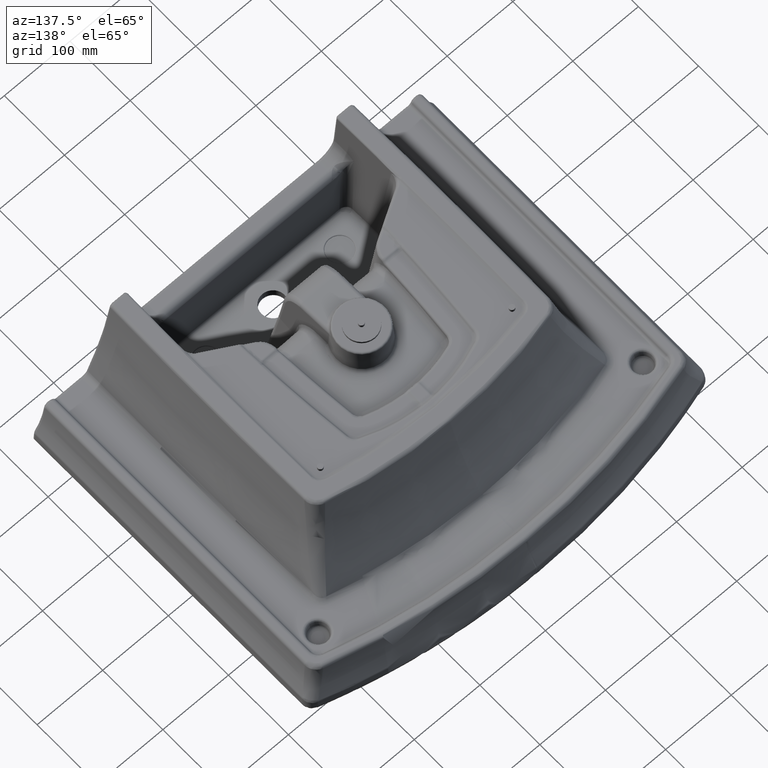
[diagram: clean part render]
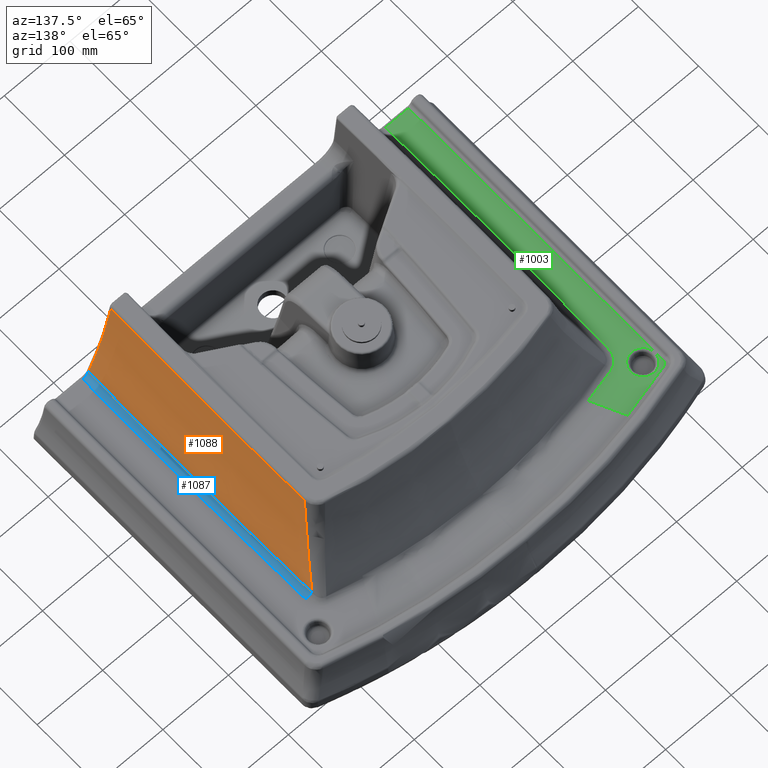
[diagram: same view with three faces highlighted in distinct colors, each labeled with its STEP entity id]
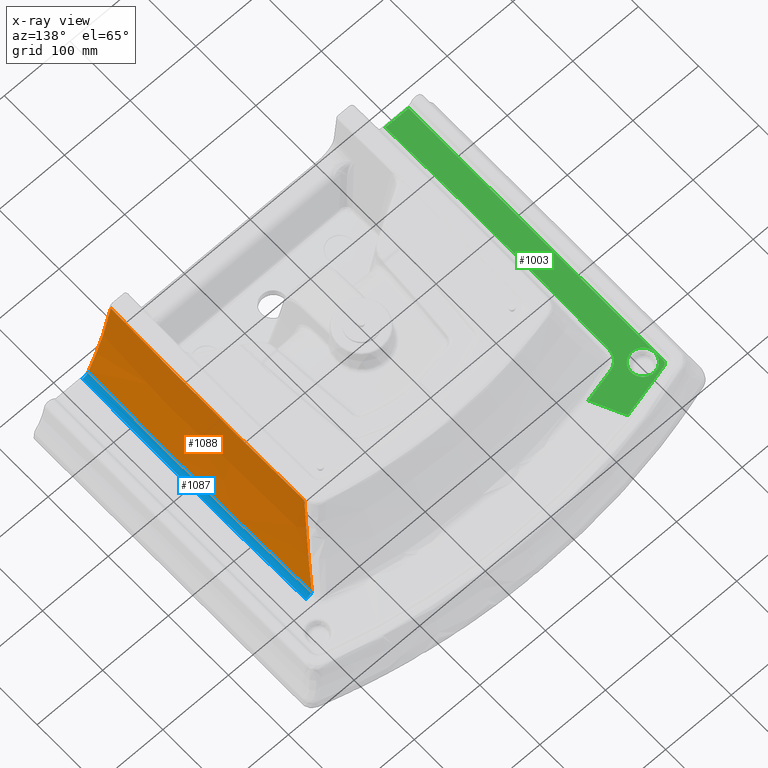
[diagram: x-ray of the same camera — body ghosted, the three highlighted faces saturated]
A machine part, auxiliary view with three faces highlighted in distinct colors.
The next image is the same camera in x-ray (body ghosted, the three faces saturated) — at least one of them is partly hidden behind the body in this view.
Their STEP definitions:

[orange] entity #1088 — the highlighted face is a SurfaceOfRevolution surface.
#117=SURFACE_OF_REVOLUTION('',#6991,#119);
#119=AXIS1_PLACEMENT('',#19977,#8203);
#694=CIRCLE('',#7535,10036.65655111);
#695=CIRCLE('',#7537,10000.74047797);
#1088=ADVANCED_FACE('',(#1616),#117,.T.);
#1616=FACE_OUTER_BOUND('',#2086,.T.);
#2086=EDGE_LOOP('',(#3698,#3699,#3700,#3701));
#3698=ORIENTED_EDGE('',*,*,#6130,.T.);
#3699=ORIENTED_EDGE('',*,*,#6086,.T.);
#3700=ORIENTED_EDGE('',*,*,#6131,.F.);
#3701=ORIENTED_EDGE('',*,*,#5995,.T.);
#5143=VERTEX_POINT('',#17750);
#5144=VERTEX_POINT('',#17776);
#5198=VERTEX_POINT('',#19139);
#5201=VERTEX_POINT('',#19236);
#5995=EDGE_CURVE('',#5143,#5144,#6904,.T.);
#6086=EDGE_CURVE('',#5198,#5201,#6959,.T.);
#6130=EDGE_CURVE('',#5144,#5198,#694,.T.);
#6131=EDGE_CURVE('',#5143,#5201,#695,.T.);
#6904=B_SPLINE_CURVE_WITH_KNOTS('',3,(#17777,#17778,#17779,#17780,#17781,
#17782),.UNSPECIFIED.,.F.,.F.,(4,2,4),(0.,0.5,1.),.UNSPECIFIED.);
#6959=B_SPLINE_CURVE_WITH_KNOTS('',3,(#19212,#19213,#19214,#19215,#19216,
#19217,#19218,#19219,#19220,#19221,#19222,#19223,#19224,#19225,#19226,#19227,
#19228,#19229,#19230,#19231,#19232,#19233,#19234,#19235),.UNSPECIFIED.,
 .F.,.F.,(4,2,2,2,2,2,2,2,1,2,2,1,4),(0.,0.250000000000001,0.500000000000001,
0.562500000000001,0.625000000000001,0.687500000000001,0.750000000000001,
0.781250000000001,0.812500000000001,0.875,0.90625,0.9375,1.),
 .UNSPECIFIED.);
#6991=B_SPLINE_CURVE_WITH_KNOTS('',3,(#19973,#19974,#19975,#19976),
 .UNSPECIFIED.,.F.,.F.,(4,4),(0.,1.),.UNSPECIFIED.);
#7535=AXIS2_PLACEMENT_3D('',#19970,#8197,#8198);
#7537=AXIS2_PLACEMENT_3D('',#19972,#8201,#8202);
#8197=DIRECTION('',(0.,-1.,-1.04083408558608E-017));
#8198=DIRECTION('',(0.999804175758331,0.,0.0197891418764106));
#8201=DIRECTION('',(0.,-1.,-1.04083408558608E-017));
#8202=DIRECTION('',(0.999890588074105,0.,0.0147922912633601));
#8203=DIRECTION('',(0.,1.,1.04083408558608E-017));
#17750=CARTESIAN_POINT('',(194.283927068453,-11.9690547502549,-210.470996751902));
#17776=CARTESIAN_POINT('',(230.239859203094,101.021897184885,-208.478414884215));
#17777=CARTESIAN_POINT('',(194.283926930841,-11.9690554861449,-210.470996764823));
#17778=CARTESIAN_POINT('',(197.913789855079,7.48616869946884,-210.127752279506));
#17779=CARTESIAN_POINT('',(202.87926327206,26.7287341318931,-209.788324992055));
#17780=CARTESIAN_POINT('',(215.01138852881,64.4677670243196,-209.122804687614));
#17781=CARTESIAN_POINT('',(222.168344034884,82.9512415600611,-208.79693989678));
#17782=CARTESIAN_POINT('',(230.239859816183,101.021898563365,-208.478414859893));
#19139=CARTESIAN_POINT('',(229.754352085261,101.021897184885,162.488565977039));
#19212=CARTESIAN_POINT('',(229.754291227839,101.021771111366,162.488797458175));
#19213=CARTESIAN_POINT('',(226.090197768316,92.566452032324,156.920402347902));
#19214=CARTESIAN_POINT('',(222.461095273766,83.6698118658392,151.605425481732));
#19215=CARTESIAN_POINT('',(215.460518216999,65.0770212819273,141.541698308106));
#19216=CARTESIAN_POINT('',(212.162046055819,55.5800624187158,136.895054921343));
#19217=CARTESIAN_POINT('',(208.323788073064,43.363609988119,131.488735430339));
#19218=CARTESIAN_POINT('',(207.597047525181,40.9896541796928,130.465255364444));
#19219=CARTESIAN_POINT('',(206.148442152736,36.1302823994839,128.423001063119));
#19220=CARTESIAN_POINT('',(205.439691927245,33.6866077891967,127.422699224162));
#19221=CARTESIAN_POINT('',(204.055081819215,28.771622518879,125.46371971307));
#19222=CARTESIAN_POINT('',(203.407138709491,26.4022471131989,124.544612861804));
#19223=CARTESIAN_POINT('',(202.118757853627,21.5469765886548,122.710279141335));
#19224=CARTESIAN_POINT('',(201.492085425804,19.1099445872953,121.814527779367));
#19225=CARTESIAN_POINT('',(200.579400081224,15.4406294006055,120.503000596151));
#19226=CARTESIAN_POINT('',(200.293151584628,14.2701090301971,120.090518280946));
#19227=CARTESIAN_POINT('',(199.716322744978,11.8717618204071,119.256841609113));
#19228=CARTESIAN_POINT('',(198.86479575702,8.26954839340297,118.022305919325));
#19229=CARTESIAN_POINT('',(198.055031334156,4.65351978876325,116.835689733367));
#19230=CARTESIAN_POINT('',(197.273932949178,1.02863540889861,115.68099667028));
#19231=CARTESIAN_POINT('',(197.02993552471,-0.126298667020832,115.318633122947));
#19232=CARTESIAN_POINT('',(196.539836609899,-2.49150774065213,114.587326094564));
#19233=CARTESIAN_POINT('',(195.818999514304,-6.04127067613658,113.506317704579));
#19234=CARTESIAN_POINT('',(195.141515858491,-9.59660372624085,112.473147332172));
#19235=CARTESIAN_POINT('',(194.70949922761,-11.9690551786565,111.805613109488));
#19236=CARTESIAN_POINT('',(194.709499327961,-11.9690547502549,111.805611521839));
#19970=CARTESIAN_POINT('',(-9804.93677836275,101.021897184885,-36.1282544775615));
#19972=CARTESIAN_POINT('',(-9804.93677836275,-11.9690547502549,-36.1282544775615));
#19973=CARTESIAN_POINT('',(-19804.1457755468,-11.9690554861449,-211.141212839562));
#19974=CARTESIAN_POINT('',(-19811.3702257968,26.8281068229552,-211.267660082662));
#19975=CARTESIAN_POINT('',(-19823.9121055868,64.8424828102153,-211.487176595062));
#19976=CARTESIAN_POINT('',(-19840.0563493668,101.021898563365,-211.769744132662));
#19977=CARTESIAN_POINT('',(-9804.93677836275,-17.0535991845949,-36.1282544775615));

[blue] entity #1087 — the highlighted toroidal blend (fillet) surface has major radius 10045.8 mm and minor (blend) radius 10 mm.
#432=TOROIDAL_SURFACE('',#7536,10045.78838166,10.);
#497=(
BOUNDED_CURVE()
B_SPLINE_CURVE(3,(#19135,#19136,#19137,#19138),.UNSPECIFIED.,.F.,.F.)
B_SPLINE_CURVE_WITH_KNOTS((4,4),(0.,1.),.UNSPECIFIED.)
CURVE()
GEOMETRIC_REPRESENTATION_ITEM()
RATIONAL_B_SPLINE_CURVE((1.0875942001527,0.97079876753721,0.970801933368309,
1.087603697646))
REPRESENTATION_ITEM('')
);
#693=CIRCLE('',#7534,10045.78838166);
#694=CIRCLE('',#7535,10036.65655111);
#1087=ADVANCED_FACE('',(#1615),#432,.F.);
#1615=FACE_OUTER_BOUND('',#2085,.T.);
#2085=EDGE_LOOP('',(#3694,#3695,#3696,#3697));
#3694=ORIENTED_EDGE('',*,*,#6129,.T.);
#3695=ORIENTED_EDGE('',*,*,#6082,.F.);
#3696=ORIENTED_EDGE('',*,*,#6130,.F.);
#3697=ORIENTED_EDGE('',*,*,#5997,.T.);
#5144=VERTEX_POINT('',#17776);
#5145=VERTEX_POINT('',#17796);
#5198=VERTEX_POINT('',#19139);
#5199=VERTEX_POINT('',#19140);
#5997=EDGE_CURVE('',#5144,#5145,#6905,.T.);
#6082=EDGE_CURVE('',#5198,#5199,#497,.T.);
#6129=EDGE_CURVE('',#5145,#5199,#693,.T.);
#6130=EDGE_CURVE('',#5144,#5198,#694,.T.);
#6905=B_SPLINE_CURVE_WITH_KNOTS('',3,(#17797,#17798,#17799,#17800,#17801,
#17802),.UNSPECIFIED.,.F.,.F.,(4,2,4),(0.,0.5,1.),.UNSPECIFIED.);
#7534=AXIS2_PLACEMENT_3D('',#19969,#8195,#8196);
#7535=AXIS2_PLACEMENT_3D('',#19970,#8197,#8198);
#7536=AXIS2_PLACEMENT_3D('',#19971,#8199,#8200);
#8195=DIRECTION('',(0.,-1.,-1.04083408558608E-017));
#8196=DIRECTION('',(0.999804175760019,0.,0.0197891417911104));
#8197=DIRECTION('',(0.,-1.,-1.04083408558608E-017));
#8198=DIRECTION('',(0.999804175758331,0.,0.0197891418764106));
#8199=DIRECTION('',(0.,1.,1.04083408558608E-017));
#8200=DIRECTION('',(-0.999791809708286,0.,-0.0204043436608397));
#17776=CARTESIAN_POINT('',(230.239859203094,101.021897184885,-208.478414884215));
#17796=CARTESIAN_POINT('',(239.376495495788,106.946400815405,-208.276637230553));
#17797=CARTESIAN_POINT('',(230.239859196318,101.021897187912,-208.478414884106));
#17798=CARTESIAN_POINT('',(231.029363034529,102.788818582117,-208.430775304973));
#17799=CARTESIAN_POINT('',(232.332799105477,104.300488046528,-208.385943782557));
#17800=CARTESIAN_POINT('',(235.543915480022,106.379108444577,-208.315111379994));
#17801=CARTESIAN_POINT('',(237.440650545536,106.946400815406,-208.289173528662));
#17802=CARTESIAN_POINT('',(239.376495495791,106.946400815405,-208.276637230553));
#19135=CARTESIAN_POINT('',(229.754356851354,101.021894824179,162.488564740118));
#19136=CARTESIAN_POINT('',(231.410716872375,104.733977004962,162.521351035791));
#19137=CARTESIAN_POINT('',(234.820216734354,106.946407156179,162.588835939349));
#19138=CARTESIAN_POINT('',(238.884394682266,106.946414641604,162.669277380624));
#19139=CARTESIAN_POINT('',(229.754352085261,101.021897184885,162.488565977039));
#19140=CARTESIAN_POINT('',(238.884394426461,106.946400815405,162.669276210639));
#19969=CARTESIAN_POINT('',(-9804.93677836275,106.946400815405,-36.1282544775615));
#19970=CARTESIAN_POINT('',(-9804.93677836275,101.021897184885,-36.1282544775615));
#19971=CARTESIAN_POINT('',(-9804.93677836275,96.9464008154053,-36.1282544775615));

[green] entity #1003 — the highlighted planar face has unit normal (0, -0, 1).
#559=PLANE('',#7462);
#619=CIRCLE('',#7372,18.1717966058403);
#648=CIRCLE('',#7433,10045.78838166);
#819=FACE_BOUND('',#1995,.T.);
#820=FACE_BOUND('',#1996,.T.);
#1003=ADVANCED_FACE('',(#819,#820),#559,.T.);
#1995=EDGE_LOOP('',(#3307));
#1996=EDGE_LOOP('',(#3308,#3309,#3310,#3311,#3312,#3313,#3314,#3315));
#2365=LINE('',#11394,#2449);
#2374=LINE('',#13624,#2458);
#2449=VECTOR('',#7872,1.);
#2458=VECTOR('',#7973,1.);
#3307=ORIENTED_EDGE('',*,*,#5671,.T.);
#3308=ORIENTED_EDGE('',*,*,#5829,.T.);
#3309=ORIENTED_EDGE('',*,*,#5689,.F.);
#3310=ORIENTED_EDGE('',*,*,#5830,.T.);
#3311=ORIENTED_EDGE('',*,*,#5786,.T.);
#3312=ORIENTED_EDGE('',*,*,#5924,.T.);
#3313=ORIENTED_EDGE('',*,*,#5723,.T.);
#3314=ORIENTED_EDGE('',*,*,#5925,.T.);
#3315=ORIENTED_EDGE('',*,*,#5796,.T.);
#4966=VERTEX_POINT('',#11187);
#4972=VERTEX_POINT('',#11367);
#4973=VERTEX_POINT('',#11393);
#4998=VERTEX_POINT('',#11709);
#4999=VERTEX_POINT('',#11714);
#5037=VERTEX_POINT('',#12807);
#5038=VERTEX_POINT('',#12820);
#5044=VERTEX_POINT('',#13117);
#5045=VERTEX_POINT('',#13125);
#5671=EDGE_CURVE('',#4966,#4966,#619,.T.);
#5689=EDGE_CURVE('',#4972,#4973,#2365,.T.);
#5723=EDGE_CURVE('',#4999,#4998,#6726,.T.);
#5786=EDGE_CURVE('',#5037,#5038,#6770,.T.);
#5796=EDGE_CURVE('',#5044,#5045,#6776,.T.);
#5829=EDGE_CURVE('',#5045,#4973,#2374,.T.);
#5830=EDGE_CURVE('',#4972,#5037,#648,.T.);
#5924=EDGE_CURVE('',#5038,#4999,#6855,.T.);
#5925=EDGE_CURVE('',#4998,#5044,#6856,.T.);
#6726=B_SPLINE_CURVE_WITH_KNOTS('',3,(#11710,#11711,#11712,#11713),
 .UNSPECIFIED.,.F.,.F.,(4,4),(0.,1.),.UNSPECIFIED.);
#6770=B_SPLINE_CURVE_WITH_KNOTS('',3,(#12821,#12822,#12823,#12824,#12825,
#12826,#12827,#12828,#12829,#12830,#12831,#12832,#12833,#12834,#12835,#12836),
 .UNSPECIFIED.,.F.,.F.,(4,2,2,2,2,2,2,4),(0.,0.249999999999995,0.312499999999995,
0.374999999999995,0.437499999999995,0.499999999999994,0.749999999999997,
1.),.UNSPECIFIED.);
#6776=B_SPLINE_CURVE_WITH_KNOTS('',3,(#13126,#13127,#13128,#13129,#13130,
#13131,#13132,#13133),.UNSPECIFIED.,.F.,.F.,(4,1,1,1,1,4),(0.,0.2,0.4,0.6,
0.8,1.),.UNSPECIFIED.);
#6855=B_SPLINE_CURVE_WITH_KNOTS('',3,(#15861,#15862,#15863,#15864),
 .UNSPECIFIED.,.F.,.F.,(4,4),(0.,1.),.UNSPECIFIED.);
#6856=B_SPLINE_CURVE_WITH_KNOTS('',3,(#15889,#15890,#15891,#15892,#15893,
#15894,#15895),.UNSPECIFIED.,.F.,.F.,(4,1,1,1,4),(0.,0.25,0.5,0.75,1.),
 .UNSPECIFIED.);
#7372=AXIS2_PLACEMENT_3D('',#11186,#7844,#7845);
#7433=AXIS2_PLACEMENT_3D('',#13626,#7976,#7977);
#7462=AXIS2_PLACEMENT_3D('',#16065,#8039,#8040);
#7844=DIRECTION('',(0.,1.,1.04083408558608E-017));
#7845=DIRECTION('',(0.,0.,-1.));
#7872=DIRECTION('',(-1.,0.,0.));
#7973=DIRECTION('',(-3.59738114852313E-007,7.26854861021753E-012,-0.999999999999936));
#7976=DIRECTION('',(0.,1.,1.04083408558608E-017));
#7977=DIRECTION('',(-0.999804175760019,0.,0.0197891417911104));
#8039=DIRECTION('',(0.,-1.,-1.04083408558608E-017));
#8040=DIRECTION('',(-0.155211348480605,-1.38777878078145E-017,0.98788128704963));
#11186=CARTESIAN_POINT('',(-238.96814561674,106.946400815405,201.871745522439));
#11187=CARTESIAN_POINT('',(-238.96814561674,106.946400815405,183.699948916599));
#11367=CARTESIAN_POINT('',(-222.312786729267,106.946400815405,-208.276637230553));
#11393=CARTESIAN_POINT('',(-257.652423136005,106.946400815385,-208.276637230553));
#11394=CARTESIAN_POINT('',(-134.97888190164,106.946400815405,-208.276637230553));
#11709=CARTESIAN_POINT('',(-181.999907791373,106.938404342843,238.868964976045));
#11710=CARTESIAN_POINT('',(-161.80582491173,106.946400815405,195.562614487308));
#11711=CARTESIAN_POINT('',(-168.54016985113,106.946400815405,210.00446381495));
#11712=CARTESIAN_POINT('',(-175.27451479053,106.946400815405,224.446313142592));
#11713=CARTESIAN_POINT('',(-182.00885972993,106.946400815405,238.888162470234));
#11714=CARTESIAN_POINT('',(-161.805920353514,106.946743487507,195.562819162874));
#12807=CARTESIAN_POINT('',(-221.82068565994,106.946400815405,162.669276210639));
#12820=CARTESIAN_POINT('',(-206.09449616354,106.946338061155,184.907110488039));
#12821=CARTESIAN_POINT('',(-221.82068573394,106.946400815405,162.669276211639));
#12822=CARTESIAN_POINT('',(-221.760031430892,106.946400815405,165.747198315526));
#12823=CARTESIAN_POINT('',(-221.221564757001,106.946400815405,168.691454943395));
#12824=CARTESIAN_POINT('',(-220.15609050375,106.946400815405,171.807599383308));
#12825=CARTESIAN_POINT('',(-219.921228774417,106.946400815405,172.41460075116));
#12826=CARTESIAN_POINT('',(-219.407971558385,106.946400815405,173.596148446605));
#12827=CARTESIAN_POINT('',(-219.115590047309,106.946400815405,174.196709562698));
#12828=CARTESIAN_POINT('',(-218.543237365299,106.946400815405,175.261317600618));
#12829=CARTESIAN_POINT('',(-218.238240746407,106.946400815405,175.777646434624));
#12830=CARTESIAN_POINT('',(-217.590606952847,106.946400815405,176.778353732729));
#12831=CARTESIAN_POINT('',(-217.228998001398,106.946400815405,177.287317227217));
#12832=CARTESIAN_POINT('',(-215.516569622526,106.946400815405,179.506408470993));
#12833=CARTESIAN_POINT('',(-213.921693423582,106.946400815405,180.984699963462));
#12834=CARTESIAN_POINT('',(-210.34170237625,106.946400815405,183.375567305759));
#12835=CARTESIAN_POINT('',(-208.30546665531,106.946400815405,184.309441173292));
#12836=CARTESIAN_POINT('',(-206.09449616354,106.946400815405,184.907110488039));
#13117=CARTESIAN_POINT('',(-252.85233452124,106.946400813425,221.606685953939));
#13125=CARTESIAN_POINT('',(-257.65227077964,106.946400812305,215.243686087439));
#13126=CARTESIAN_POINT('',(-252.85233452124,106.946400813425,221.606685953939));
#13127=CARTESIAN_POINT('',(-253.41785584854,106.946400813425,221.444875814739));
#13128=CARTESIAN_POINT('',(-254.46381769724,106.946400816295,220.991773043639));
#13129=CARTESIAN_POINT('',(-255.82955494994,106.946400815265,219.917543858739));
#13130=CARTESIAN_POINT('',(-256.85932682194,106.946400815085,218.548122750139));
#13131=CARTESIAN_POINT('',(-257.51183010264,106.946400816825,216.928598950839));
#13132=CARTESIAN_POINT('',(-257.65208466454,106.946400812305,215.818019713439));
#13133=CARTESIAN_POINT('',(-257.65227077964,106.946400812305,215.243686087439));
#13624=CARTESIAN_POINT('',(-257.65242416184,106.946400815405,-211.128254477562));
#13626=CARTESIAN_POINT('',(9822.00048712927,106.946400815405,-36.1282544775615));
#15861=CARTESIAN_POINT('',(-206.09449616354,106.946400815405,184.907110488039));
#15862=CARTESIAN_POINT('',(-191.435133096975,106.946400815405,188.874512085679));
#15863=CARTESIAN_POINT('',(-176.672245050851,106.946400815405,192.426346251877));
#15864=CARTESIAN_POINT('',(-161.805832025169,106.946400815405,195.562612986634));
#15889=CARTESIAN_POINT('',(8.53210493080853,106.946400815405,258.056022627439));
#15890=CARTESIAN_POINT('',(-13.6496588426496,106.946400815405,258.054399806739));
#15891=CARTESIAN_POINT('',(-57.8848921038897,106.946400815475,256.511055075039));
#15892=CARTESIAN_POINT('',(-124.09789828054,106.946400815155,249.592999873339));
#15893=CARTESIAN_POINT('',(-189.43595845544,106.946400816325,238.127813500439));
#15894=CARTESIAN_POINT('',(-231.87028097164,106.946400813425,227.600476841339));
#15895=CARTESIAN_POINT('',(-252.85233452124,106.946400813425,221.606685953939));
#16065=CARTESIAN_POINT('',(-134.97888190164,106.946400815405,213.529528918839));